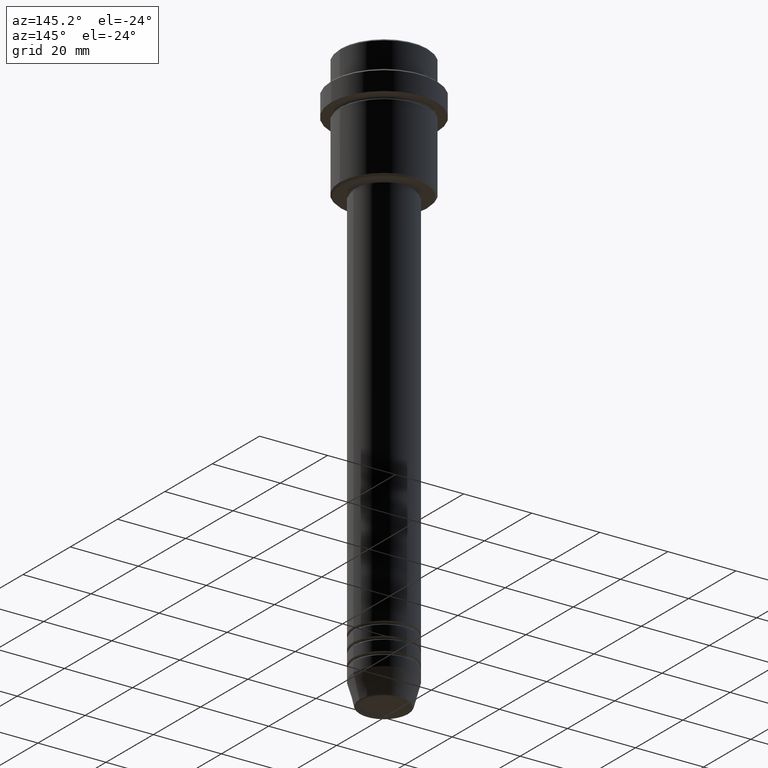
[diagram: clean part render]
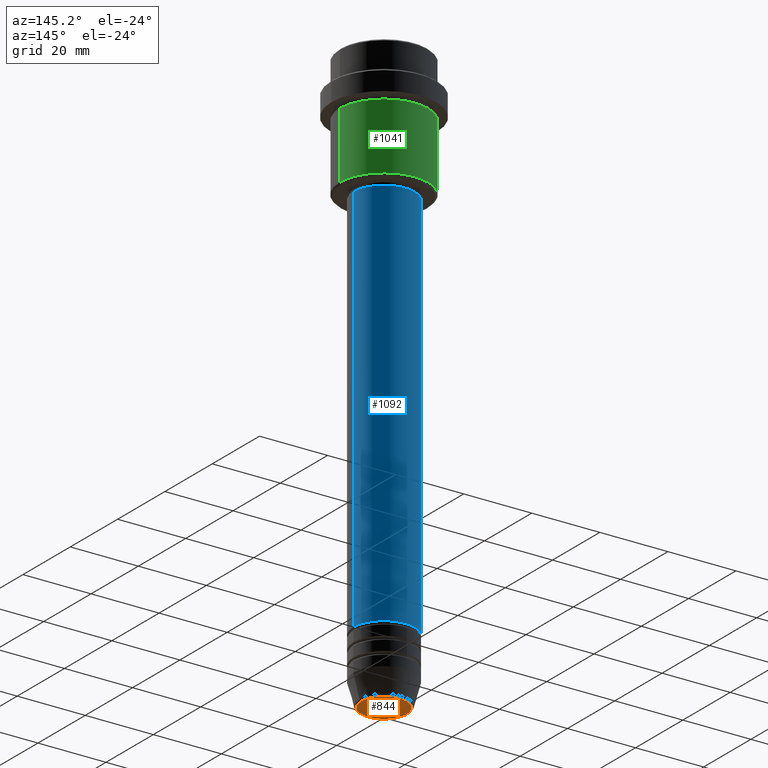
[diagram: same view with three faces highlighted in distinct colors, each labeled with its STEP entity id]
A machine part, auxiliary view with three faces highlighted in distinct colors.
Their STEP definitions:

[orange] entity #844 — the highlighted planar face has unit normal (0, -0, 1).
#192 = DIRECTION ( 'NONE',  ( 1.000000000000000000, 0.000000000000000000, 0.000000000000000000 ) ) ;
#201 = DIRECTION ( 'NONE',  ( 1.000000000000000000, 0.000000000000000000, 0.000000000000000000 ) ) ;
#226 = CARTESIAN_POINT ( 'NONE',  ( -6.740692158992659166, 8.550696569392690612E-16, -170.9999999999999716 ) ) ;
#312 = DIRECTION ( 'NONE',  ( 0.000000000000000000, -0.000000000000000000, 1.000000000000000000 ) ) ;
#505 = CARTESIAN_POINT ( 'NONE',  ( 0.000000000000000000, 0.000000000000000000, -170.9999999999999716 ) ) ;
#529 = AXIS2_PLACEMENT_3D ( 'NONE', #843, #733, #1373 ) ;
#545 = EDGE_CURVE ( 'NONE', #1001, #1330, #1148, .T. ) ;
#548 = CARTESIAN_POINT ( 'NONE',  ( 0.000000000000000000, 0.000000000000000000, -170.9999999999999716 ) ) ;
#552 = ORIENTED_EDGE ( 'NONE', *, *, #545, .T. ) ;
#646 = AXIS2_PLACEMENT_3D ( 'NONE', #505, #1035, #192 ) ;
#733 = DIRECTION ( 'NONE',  ( 0.000000000000000000, 0.000000000000000000, -1.000000000000000000 ) ) ;
#843 = CARTESIAN_POINT ( 'NONE',  ( 0.000000000000000000, 0.000000000000000000, -170.9999999999999716 ) ) ;
#844 = ADVANCED_FACE ( 'NONE', ( #854 ), #1285, .F. ) ;
#854 = FACE_OUTER_BOUND ( 'NONE', #928, .T. ) ;
#928 = EDGE_LOOP ( 'NONE', ( #552, #1246 ) ) ;
#952 = CIRCLE ( 'NONE', #529, 6.740692158992659166 ) ;
#969 = AXIS2_PLACEMENT_3D ( 'NONE', #548, #312, #201 ) ;
#1001 = VERTEX_POINT ( 'NONE', #1110 ) ;
#1019 = EDGE_CURVE ( 'NONE', #1330, #1001, #952, .T. ) ;
#1035 = DIRECTION ( 'NONE',  ( 0.000000000000000000, 0.000000000000000000, -1.000000000000000000 ) ) ;
#1110 = CARTESIAN_POINT ( 'NONE',  ( 6.740692158992659166, 0.000000000000000000, -170.9999999999999716 ) ) ;
#1148 = CIRCLE ( 'NONE', #646, 6.740692158992659166 ) ;
#1246 = ORIENTED_EDGE ( 'NONE', *, *, #1019, .T. ) ;
#1285 = PLANE ( 'NONE',  #969 ) ;
#1330 = VERTEX_POINT ( 'NONE', #226 ) ;
#1373 = DIRECTION ( 'NONE',  ( 1.000000000000000000, 0.000000000000000000, 0.000000000000000000 ) ) ;

[blue] entity #1092 — the highlighted cylindrical surface (partial cylindrical patch) has radius 9 mm, axis along (-0, -0, 1).
#13 = ORIENTED_EDGE ( 'NONE', *, *, #183, .T. ) ;
#18 = DIRECTION ( 'NONE',  ( -0.000000000000000000, -0.000000000000000000, 1.000000000000000000 ) ) ;
#30 = CIRCLE ( 'NONE', #606, 9.000000000000000000 ) ;
#78 = DIRECTION ( 'NONE',  ( 1.000000000000000000, 0.000000000000000000, 0.000000000000000000 ) ) ;
#100 = DIRECTION ( 'NONE',  ( -0.000000000000000000, -0.000000000000000000, 1.000000000000000000 ) ) ;
#108 = EDGE_CURVE ( 'NONE', #1109, #457, #372, .T. ) ;
#111 = ORIENTED_EDGE ( 'NONE', *, *, #108, .F. ) ;
#118 = ORIENTED_EDGE ( 'NONE', *, *, #447, .F. ) ;
#183 = EDGE_CURVE ( 'NONE', #893, #457, #638, .T. ) ;
#229 = DIRECTION ( 'NONE',  ( 1.000000000000000000, 0.000000000000000000, 0.000000000000000000 ) ) ;
#256 = LINE ( 'NONE', #797, #1066 ) ;
#293 = FACE_OUTER_BOUND ( 'NONE', #1362, .T. ) ;
#372 = CIRCLE ( 'NONE', #755, 9.000000000000001776 ) ;
#406 = CARTESIAN_POINT ( 'NONE',  ( 9.000000000000000000, 0.000000000000000000, -151.9999999999998863 ) ) ;
#447 = EDGE_CURVE ( 'NONE', #586, #1109, #256, .T. ) ;
#457 = VERTEX_POINT ( 'NONE', #899 ) ;
#514 = AXIS2_PLACEMENT_3D ( 'NONE', #728, #1156, #78 ) ;
#567 = CARTESIAN_POINT ( 'NONE',  ( 0.000000000000000000, 0.000000000000000000, -37.00000000000000000 ) ) ;
#586 = VERTEX_POINT ( 'NONE', #406 ) ;
#606 = AXIS2_PLACEMENT_3D ( 'NONE', #1126, #18, #1107 ) ;
#638 = LINE ( 'NONE', #876, #738 ) ;
#699 = DIRECTION ( 'NONE',  ( -0.000000000000000000, -0.000000000000000000, 1.000000000000000000 ) ) ;
#728 = CARTESIAN_POINT ( 'NONE',  ( 0.000000000000000000, 0.000000000000000000, 0.000000000000000000 ) ) ;
#738 = VECTOR ( 'NONE', #100, 1000.000000000000000 ) ;
#740 = CARTESIAN_POINT ( 'NONE',  ( 9.000000000000001776, 0.000000000000000000, -37.00000000000000000 ) ) ;
#755 = AXIS2_PLACEMENT_3D ( 'NONE', #567, #699, #229 ) ;
#797 = CARTESIAN_POINT ( 'NONE',  ( 9.000000000000001776, 0.000000000000000000, 0.000000000000000000 ) ) ;
#876 = CARTESIAN_POINT ( 'NONE',  ( -9.000000000000001776, 1.102182119232617911E-15, 0.000000000000000000 ) ) ;
#893 = VERTEX_POINT ( 'NONE', #1319 ) ;
#899 = CARTESIAN_POINT ( 'NONE',  ( -9.000000000000001776, 1.102182119232617911E-15, -37.00000000000000000 ) ) ;
#944 = CYLINDRICAL_SURFACE ( 'NONE', #514, 9.000000000000001776 ) ;
#1066 = VECTOR ( 'NONE', #1340, 1000.000000000000000 ) ;
#1092 = ADVANCED_FACE ( 'NONE', ( #293 ), #944, .T. ) ;
#1107 = DIRECTION ( 'NONE',  ( 1.000000000000000000, 0.000000000000000000, 0.000000000000000000 ) ) ;
#1109 = VERTEX_POINT ( 'NONE', #740 ) ;
#1126 = CARTESIAN_POINT ( 'NONE',  ( 0.000000000000000000, 0.000000000000000000, -151.9999999999998863 ) ) ;
#1155 = ORIENTED_EDGE ( 'NONE', *, *, #1308, .T. ) ;
#1156 = DIRECTION ( 'NONE',  ( -0.000000000000000000, -0.000000000000000000, 1.000000000000000000 ) ) ;
#1308 = EDGE_CURVE ( 'NONE', #586, #893, #30, .T. ) ;
#1319 = CARTESIAN_POINT ( 'NONE',  ( -9.000000000000000000, 1.102182119232617714E-15, -151.9999999999998863 ) ) ;
#1340 = DIRECTION ( 'NONE',  ( -0.000000000000000000, -0.000000000000000000, 1.000000000000000000 ) ) ;
#1362 = EDGE_LOOP ( 'NONE', ( #1155, #13, #111, #118 ) ) ;

[green] entity #1041 — the highlighted cylindrical surface (partial cylindrical patch) has radius 13 mm, axis along (-0, -0, 1).
#8 = AXIS2_PLACEMENT_3D ( 'NONE', #396, #408, #713 ) ;
#20 = LINE ( 'NONE', #454, #853 ) ;
#43 = EDGE_CURVE ( 'NONE', #660, #731, #1145, .T. ) ;
#155 = CARTESIAN_POINT ( 'NONE',  ( 13.00000000000000000, 0.000000000000000000, -15.99999999999997335 ) ) ;
#247 = CARTESIAN_POINT ( 'NONE',  ( 0.000000000000000000, 0.000000000000000000, -35.50000000000000000 ) ) ;
#253 = ORIENTED_EDGE ( 'NONE', *, *, #872, .F. ) ;
#305 = CARTESIAN_POINT ( 'NONE',  ( -13.00000000000000000, 1.592040838891559095E-15, 0.000000000000000000 ) ) ;
#326 = AXIS2_PLACEMENT_3D ( 'NONE', #1009, #1128, #591 ) ;
#355 = DIRECTION ( 'NONE',  ( -0.000000000000000000, -0.000000000000000000, 1.000000000000000000 ) ) ;
#396 = CARTESIAN_POINT ( 'NONE',  ( 0.000000000000000000, 0.000000000000000000, 0.000000000000000000 ) ) ;
#408 = DIRECTION ( 'NONE',  ( -0.000000000000000000, -0.000000000000000000, 1.000000000000000000 ) ) ;
#454 = CARTESIAN_POINT ( 'NONE',  ( 13.00000000000000000, 0.000000000000000000, 0.000000000000000000 ) ) ;
#579 = VECTOR ( 'NONE', #847, 1000.000000000000000 ) ;
#591 = DIRECTION ( 'NONE',  ( 1.000000000000000000, 0.000000000000000000, 0.000000000000000000 ) ) ;
#617 = FACE_OUTER_BOUND ( 'NONE', #801, .T. ) ;
#660 = VERTEX_POINT ( 'NONE', #839 ) ;
#687 = EDGE_CURVE ( 'NONE', #731, #815, #960, .T. ) ;
#713 = DIRECTION ( 'NONE',  ( 1.000000000000000000, 0.000000000000000000, 0.000000000000000000 ) ) ;
#731 = VERTEX_POINT ( 'NONE', #991 ) ;
#774 = ORIENTED_EDGE ( 'NONE', *, *, #985, .F. ) ;
#801 = EDGE_LOOP ( 'NONE', ( #858, #1305, #253, #774 ) ) ;
#815 = VERTEX_POINT ( 'NONE', #1396 ) ;
#829 = CYLINDRICAL_SURFACE ( 'NONE', #8, 13.00000000000000000 ) ;
#839 = CARTESIAN_POINT ( 'NONE',  ( 13.00000000000000000, 0.000000000000000000, -35.50000000000000000 ) ) ;
#847 = DIRECTION ( 'NONE',  ( -0.000000000000000000, -0.000000000000000000, 1.000000000000000000 ) ) ;
#853 = VECTOR ( 'NONE', #355, 1000.000000000000000 ) ;
#858 = ORIENTED_EDGE ( 'NONE', *, *, #43, .T. ) ;
#872 = EDGE_CURVE ( 'NONE', #873, #815, #1188, .T. ) ;
#873 = VERTEX_POINT ( 'NONE', #155 ) ;
#960 = LINE ( 'NONE', #305, #579 ) ;
#985 = EDGE_CURVE ( 'NONE', #660, #873, #20, .T. ) ;
#991 = CARTESIAN_POINT ( 'NONE',  ( -13.00000000000000000, 1.592040838891559095E-15, -35.50000000000000000 ) ) ;
#1009 = CARTESIAN_POINT ( 'NONE',  ( 0.000000000000000000, 0.000000000000000000, -15.99999999999997335 ) ) ;
#1041 = ADVANCED_FACE ( 'NONE', ( #617 ), #829, .T. ) ;
#1048 = AXIS2_PLACEMENT_3D ( 'NONE', #247, #1239, #1129 ) ;
#1128 = DIRECTION ( 'NONE',  ( -0.000000000000000000, -0.000000000000000000, 1.000000000000000000 ) ) ;
#1129 = DIRECTION ( 'NONE',  ( -1.000000000000000000, 0.000000000000000000, 0.000000000000000000 ) ) ;
#1145 = CIRCLE ( 'NONE', #1048, 13.00000000000000000 ) ;
#1188 = CIRCLE ( 'NONE', #326, 13.00000000000000000 ) ;
#1239 = DIRECTION ( 'NONE',  ( -0.000000000000000000, -0.000000000000000000, 1.000000000000000000 ) ) ;
#1305 = ORIENTED_EDGE ( 'NONE', *, *, #687, .T. ) ;
#1396 = CARTESIAN_POINT ( 'NONE',  ( -13.00000000000000000, 1.592040838891559095E-15, -15.99999999999997335 ) ) ;